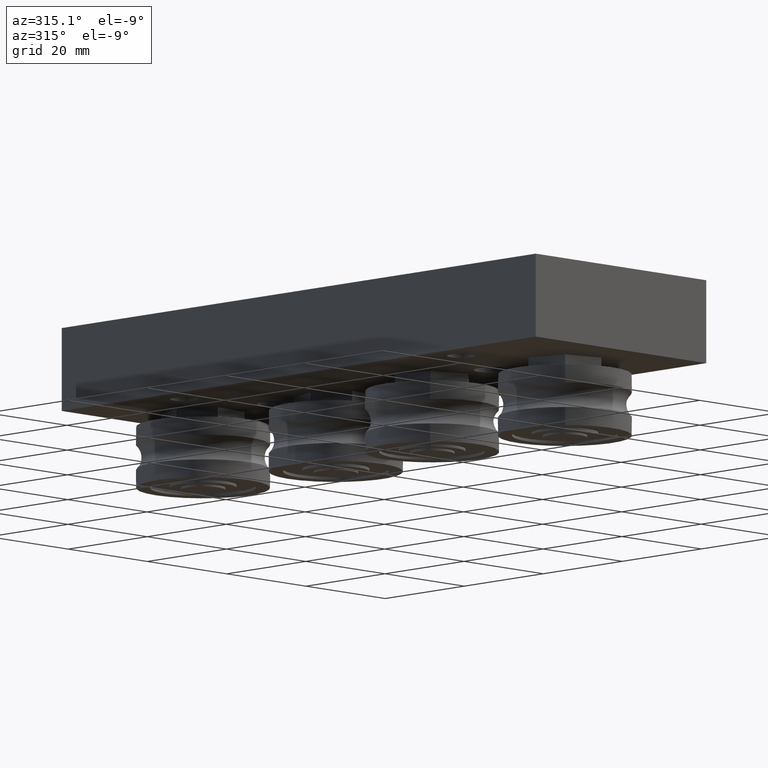
[diagram: clean part render]
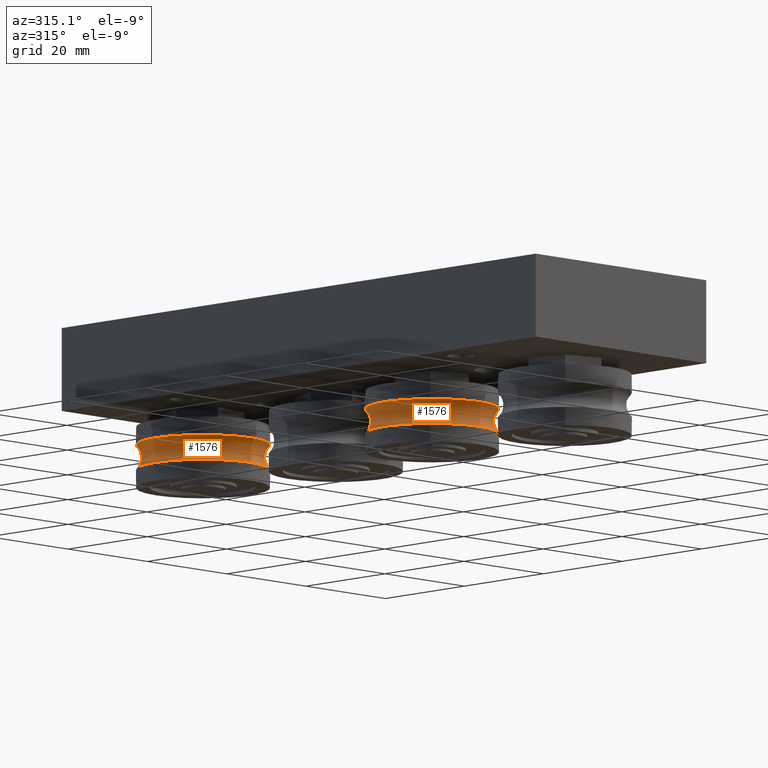
[diagram: same view with one multi-face feature highlighted, each face labeled with its STEP entity id]
A machine part, auxiliary view. The highlighted faces form ONE feature: a constant-radius fillet chain: 2 tangent blend faces with common blend radius 3 mm. The faces share edges in the B-rep.
Their STEP definitions:
[1] entity #1576 (Torus):
#86=TOROIDAL_SURFACE('',#1933,14.,3.);
#458=FACE_OUTER_BOUND('',#587,.T.);
#587=EDGE_LOOP('',(#1264,#1265,#1266,#1267,#1268,#1269));
#698=CIRCLE('',#1931,12.);
#699=CIRCLE('',#1932,12.);
#700=CIRCLE('',#1934,3.);
#701=CIRCLE('',#1935,12.);
#702=CIRCLE('',#1936,12.);
#809=VERTEX_POINT('',#2792);
#810=VERTEX_POINT('',#2793);
#811=VERTEX_POINT('',#2798);
#812=VERTEX_POINT('',#2800);
#972=EDGE_CURVE('',#809,#810,#698,.T.);
#974=EDGE_CURVE('',#810,#809,#699,.T.);
#975=EDGE_CURVE('',#810,#811,#700,.T.);
#976=EDGE_CURVE('',#812,#811,#701,.T.);
#977=EDGE_CURVE('',#811,#812,#702,.T.);
#1264=ORIENTED_EDGE('',*,*,#972,.T.);
#1265=ORIENTED_EDGE('',*,*,#975,.T.);
#1266=ORIENTED_EDGE('',*,*,#976,.F.);
#1267=ORIENTED_EDGE('',*,*,#977,.F.);
#1268=ORIENTED_EDGE('',*,*,#975,.F.);
#1269=ORIENTED_EDGE('',*,*,#974,.T.);
#1576=ADVANCED_FACE('',(#458),#86,.F.);
#1931=AXIS2_PLACEMENT_3D('',#2794,#2286,#2287);
#1932=AXIS2_PLACEMENT_3D('',#2796,#2289,#2290);
#1933=AXIS2_PLACEMENT_3D('',#2797,#2291,#2292);
#1934=AXIS2_PLACEMENT_3D('',#2799,#2293,#2294);
#1935=AXIS2_PLACEMENT_3D('',#2801,#2295,#2296);
#1936=AXIS2_PLACEMENT_3D('',#2802,#2297,#2298);
#2286=DIRECTION('center_axis',(1.,0.,0.));
#2287=DIRECTION('ref_axis',(0.,1.,0.));
#2289=DIRECTION('center_axis',(1.,0.,0.));
#2290=DIRECTION('ref_axis',(0.,1.,0.));
#2291=DIRECTION('center_axis',(1.,0.,0.));
#2292=DIRECTION('ref_axis',(0.,0.,-1.));
#2293=DIRECTION('center_axis',(0.,-1.,-1.22464679914735E-16));
#2294=DIRECTION('ref_axis',(0.,-1.22464679914735E-16,1.));
#2295=DIRECTION('center_axis',(1.,0.,0.));
#2296=DIRECTION('ref_axis',(0.,1.,0.));
#2297=DIRECTION('center_axis',(1.,0.,0.));
#2298=DIRECTION('ref_axis',(0.,1.,0.));
#2792=CARTESIAN_POINT('',(-2.23606797749979,-12.,-1.46957615897682E-15));
#2793=CARTESIAN_POINT('',(-2.23606797749979,-1.46957615897682E-15,12.));
#2794=CARTESIAN_POINT('Origin',(-2.23606797749979,0.,0.));
#2796=CARTESIAN_POINT('Origin',(-2.23606797749979,0.,0.));
#2797=CARTESIAN_POINT('Origin',(0.,0.,0.));
#2798=CARTESIAN_POINT('',(2.23606797749979,-1.46957615897682E-15,12.));
#2799=CARTESIAN_POINT('Origin',(0.,-1.71450551880629E-15,14.));
#2800=CARTESIAN_POINT('',(2.23606797749979,-12.,-1.46957615897682E-15));
#2801=CARTESIAN_POINT('Origin',(2.23606797749979,0.,0.));
#2802=CARTESIAN_POINT('Origin',(2.23606797749979,0.,0.));
[2] entity #1576 (Torus):
#86=TOROIDAL_SURFACE('',#1933,14.,3.);
#458=FACE_OUTER_BOUND('',#587,.T.);
#587=EDGE_LOOP('',(#1264,#1265,#1266,#1267,#1268,#1269));
#698=CIRCLE('',#1931,12.);
#699=CIRCLE('',#1932,12.);
#700=CIRCLE('',#1934,3.);
#701=CIRCLE('',#1935,12.);
#702=CIRCLE('',#1936,12.);
#809=VERTEX_POINT('',#2792);
#810=VERTEX_POINT('',#2793);
#811=VERTEX_POINT('',#2798);
#812=VERTEX_POINT('',#2800);
#972=EDGE_CURVE('',#809,#810,#698,.T.);
#974=EDGE_CURVE('',#810,#809,#699,.T.);
#975=EDGE_CURVE('',#810,#811,#700,.T.);
#976=EDGE_CURVE('',#812,#811,#701,.T.);
#977=EDGE_CURVE('',#811,#812,#702,.T.);
#1264=ORIENTED_EDGE('',*,*,#972,.T.);
#1265=ORIENTED_EDGE('',*,*,#975,.T.);
#1266=ORIENTED_EDGE('',*,*,#976,.F.);
#1267=ORIENTED_EDGE('',*,*,#977,.F.);
#1268=ORIENTED_EDGE('',*,*,#975,.F.);
#1269=ORIENTED_EDGE('',*,*,#974,.T.);
#1576=ADVANCED_FACE('',(#458),#86,.F.);
#1931=AXIS2_PLACEMENT_3D('',#2794,#2286,#2287);
#1932=AXIS2_PLACEMENT_3D('',#2796,#2289,#2290);
#1933=AXIS2_PLACEMENT_3D('',#2797,#2291,#2292);
#1934=AXIS2_PLACEMENT_3D('',#2799,#2293,#2294);
#1935=AXIS2_PLACEMENT_3D('',#2801,#2295,#2296);
#1936=AXIS2_PLACEMENT_3D('',#2802,#2297,#2298);
#2286=DIRECTION('center_axis',(1.,0.,0.));
#2287=DIRECTION('ref_axis',(0.,1.,0.));
#2289=DIRECTION('center_axis',(1.,0.,0.));
#2290=DIRECTION('ref_axis',(0.,1.,0.));
#2291=DIRECTION('center_axis',(1.,0.,0.));
#2292=DIRECTION('ref_axis',(0.,0.,-1.));
#2293=DIRECTION('center_axis',(0.,-1.,-1.22464679914735E-16));
#2294=DIRECTION('ref_axis',(0.,-1.22464679914735E-16,1.));
#2295=DIRECTION('center_axis',(1.,0.,0.));
#2296=DIRECTION('ref_axis',(0.,1.,0.));
#2297=DIRECTION('center_axis',(1.,0.,0.));
#2298=DIRECTION('ref_axis',(0.,1.,0.));
#2792=CARTESIAN_POINT('',(-2.23606797749979,-12.,-1.46957615897682E-15));
#2793=CARTESIAN_POINT('',(-2.23606797749979,-1.46957615897682E-15,12.));
#2794=CARTESIAN_POINT('Origin',(-2.23606797749979,0.,0.));
#2796=CARTESIAN_POINT('Origin',(-2.23606797749979,0.,0.));
#2797=CARTESIAN_POINT('Origin',(0.,0.,0.));
#2798=CARTESIAN_POINT('',(2.23606797749979,-1.46957615897682E-15,12.));
#2799=CARTESIAN_POINT('Origin',(0.,-1.71450551880629E-15,14.));
#2800=CARTESIAN_POINT('',(2.23606797749979,-12.,-1.46957615897682E-15));
#2801=CARTESIAN_POINT('Origin',(2.23606797749979,0.,0.));
#2802=CARTESIAN_POINT('Origin',(2.23606797749979,0.,0.));